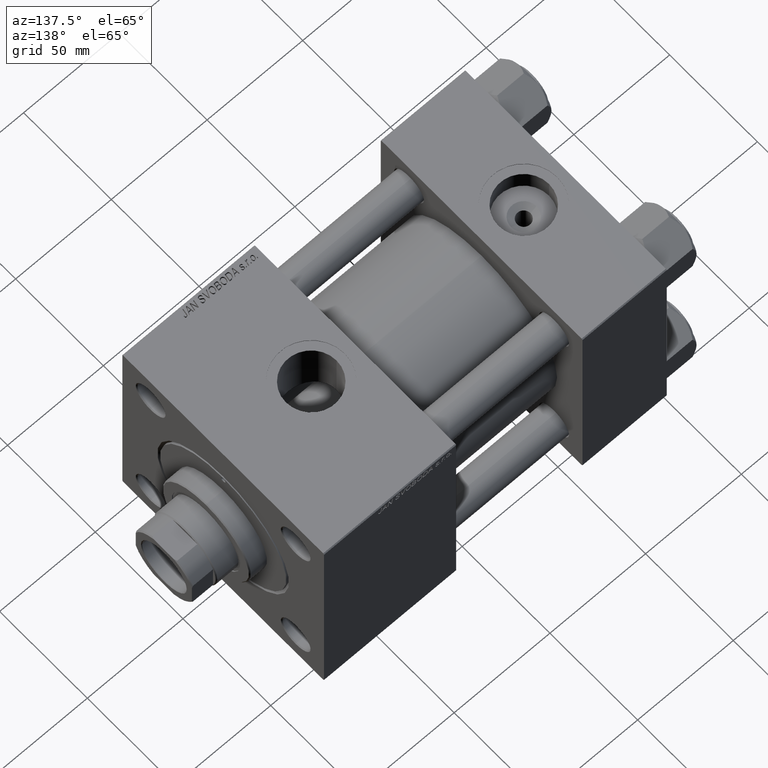
[diagram: clean part render]
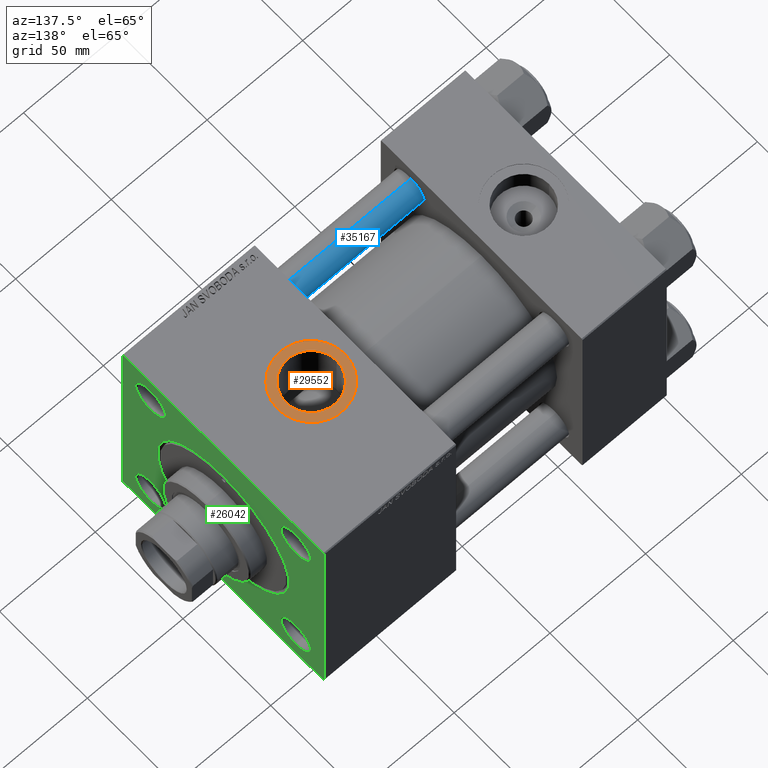
[diagram: same view with three faces highlighted in distinct colors, each labeled with its STEP entity id]
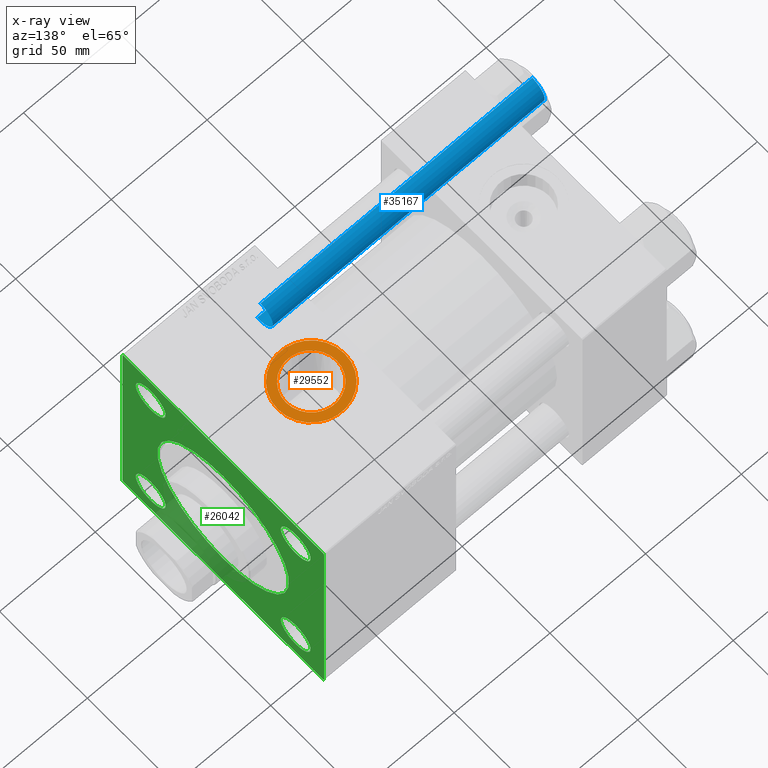
[diagram: x-ray of the same camera — body ghosted, the three highlighted faces saturated]
A machine part, auxiliary view with three faces highlighted in distinct colors.
The next image is the same camera in x-ray (body ghosted, the three faces saturated) — at least one of them is partly hidden behind the body in this view.
Their STEP definitions:

[orange] entity #29552 — the highlighted planar face has unit normal (0, 0, 1).
#899 = CARTESIAN_POINT ( 'NONE',  ( 115.4999999999999858, -4.795762005399357763E-15, 57.30000000000000426 ) ) ;
#1336 = EDGE_LOOP ( 'NONE', ( #49552, #43679 ) ) ;
#2444 = CIRCLE ( 'NONE', #14855, 13.22000000000000952 ) ;
#2804 = CARTESIAN_POINT ( 'NONE',  ( 119.7800000000000011, -6.938893903907229955E-15, 57.30000000000000426 ) ) ;
#3019 = DIRECTION ( 'NONE',  ( 0.000000000000000000, 0.000000000000000000, 1.000000000000000000 ) ) ;
#3415 = PLANE ( 'NONE',  #5396 ) ;
#4392 = EDGE_CURVE ( 'NONE', #24232, #10200, #36572, .T. ) ;
#5396 = AXIS2_PLACEMENT_3D ( 'NONE', #30386, #38119, #10623 ) ;
#7269 = FACE_BOUND ( 'NONE', #17967, .T. ) ;
#10200 = VERTEX_POINT ( 'NONE', #2804 ) ;
#10391 = DIRECTION ( 'NONE',  ( -0.000000000000000000, -0.000000000000000000, -1.000000000000000000 ) ) ;
#10623 = DIRECTION ( 'NONE',  ( 1.000000000000000000, 0.000000000000000000, -0.000000000000000000 ) ) ;
#12533 = CIRCLE ( 'NONE', #31395, 17.50000000000001421 ) ;
#13864 = DIRECTION ( 'NONE',  ( 0.000000000000000000, 0.000000000000000000, 1.000000000000000000 ) ) ;
#14855 = AXIS2_PLACEMENT_3D ( 'NONE', #37891, #50703, #30407 ) ;
#16553 = CIRCLE ( 'NONE', #37892, 17.50000000000001421 ) ;
#17967 = EDGE_LOOP ( 'NONE', ( #19486, #24415 ) ) ;
#18699 = DIRECTION ( 'NONE',  ( 1.000000000000000000, 0.000000000000000000, 0.000000000000000000 ) ) ;
#19486 = ORIENTED_EDGE ( 'NONE', *, *, #45983, .T. ) ;
#20109 = CARTESIAN_POINT ( 'NONE',  ( 146.2200000000000273, -5.319910835434427226E-15, 57.30000000000000426 ) ) ;
#21808 = DIRECTION ( 'NONE',  ( 1.000000000000000000, 0.000000000000000000, 0.000000000000000000 ) ) ;
#22519 = EDGE_CURVE ( 'NONE', #36223, #32382, #12533, .T. ) ;
#23374 = CARTESIAN_POINT ( 'NONE',  ( 150.5000000000000284, -6.938893903907229955E-15, 57.30000000000000426 ) ) ;
#24232 = VERTEX_POINT ( 'NONE', #20109 ) ;
#24415 = ORIENTED_EDGE ( 'NONE', *, *, #4392, .T. ) ;
#27294 = FACE_OUTER_BOUND ( 'NONE', #1336, .T. ) ;
#29552 = ADVANCED_FACE ( 'NONE', ( #7269, #27294 ), #3415, .T. ) ;
#30386 = CARTESIAN_POINT ( 'NONE',  ( 133.0000000000000000, -6.938893903907229955E-15, 57.30000000000000426 ) ) ;
#30407 = DIRECTION ( 'NONE',  ( 1.000000000000000000, 0.000000000000000000, 0.000000000000000000 ) ) ;
#31395 = AXIS2_PLACEMENT_3D ( 'NONE', #49050, #13864, #21808 ) ;
#32382 = VERTEX_POINT ( 'NONE', #899 ) ;
#33014 = CARTESIAN_POINT ( 'NONE',  ( 133.0000000000000000, -6.938893903907229955E-15, 57.30000000000000426 ) ) ;
#35766 = AXIS2_PLACEMENT_3D ( 'NONE', #33014, #10391, #49437 ) ;
#36223 = VERTEX_POINT ( 'NONE', #23374 ) ;
#36572 = CIRCLE ( 'NONE', #35766, 13.22000000000000952 ) ;
#37891 = CARTESIAN_POINT ( 'NONE',  ( 133.0000000000000000, -6.938893903907229955E-15, 57.30000000000000426 ) ) ;
#37892 = AXIS2_PLACEMENT_3D ( 'NONE', #38235, #3019, #18699 ) ;
#38119 = DIRECTION ( 'NONE',  ( 0.000000000000000000, 0.000000000000000000, 1.000000000000000000 ) ) ;
#38235 = CARTESIAN_POINT ( 'NONE',  ( 133.0000000000000000, -6.938893903907229955E-15, 57.30000000000000426 ) ) ;
#43679 = ORIENTED_EDGE ( 'NONE', *, *, #50285, .T. ) ;
#45983 = EDGE_CURVE ( 'NONE', #10200, #24232, #2444, .T. ) ;
#49050 = CARTESIAN_POINT ( 'NONE',  ( 133.0000000000000000, -6.938893903907229955E-15, 57.30000000000000426 ) ) ;
#49437 = DIRECTION ( 'NONE',  ( 1.000000000000000000, 0.000000000000000000, 0.000000000000000000 ) ) ;
#49552 = ORIENTED_EDGE ( 'NONE', *, *, #22519, .T. ) ;
#50285 = EDGE_CURVE ( 'NONE', #32382, #36223, #16553, .T. ) ;
#50703 = DIRECTION ( 'NONE',  ( -0.000000000000000000, -0.000000000000000000, -1.000000000000000000 ) ) ;

[blue] entity #35167 — the highlighted cylindrical surface (edge-blend (fillet) strip) has radius 8 mm, axis along (1, 0, -0).
#1071 = FACE_OUTER_BOUND ( 'NONE', #18925, .T. ) ;
#1137 = LINE ( 'NONE', #44563, #49214 ) ;
#1935 = ORIENTED_EDGE ( 'NONE', *, *, #14462, .T. ) ;
#2198 = AXIS2_PLACEMENT_3D ( 'NONE', #16756, #13586, #13841 ) ;
#11372 = DIRECTION ( 'NONE',  ( -0.000000000000000000, -0.000000000000000000, 1.000000000000000000 ) ) ;
#13586 = DIRECTION ( 'NONE',  ( -0.000000000000000000, -0.000000000000000000, -1.000000000000000000 ) ) ;
#13841 = DIRECTION ( 'NONE',  ( -1.000000000000000000, 0.000000000000000000, 0.000000000000000000 ) ) ;
#14462 = EDGE_CURVE ( 'NONE', #43393, #36994, #26290, .T. ) ;
#15328 = EDGE_CURVE ( 'NONE', #29436, #36994, #41071, .T. ) ;
#16397 = DIRECTION ( 'NONE',  ( 1.000000000000000000, 0.000000000000000000, 0.000000000000000000 ) ) ;
#16756 = CARTESIAN_POINT ( 'NONE',  ( 0.000000000000000000, 0.000000000000000000, 143.0000000000000000 ) ) ;
#16903 = CARTESIAN_POINT ( 'NONE',  ( 0.000000000000000000, 0.000000000000000000, 142.4999999999999716 ) ) ;
#16922 = CIRCLE ( 'NONE', #39080, 8.000000000000000000 ) ;
#18925 = EDGE_LOOP ( 'NONE', ( #43512, #31674, #27037, #1935 ) ) ;
#20413 = DIRECTION ( 'NONE',  ( -0.000000000000000000, -0.000000000000000000, -1.000000000000000000 ) ) ;
#23425 = DIRECTION ( 'NONE',  ( 1.000000000000000000, 0.000000000000000000, 0.000000000000000000 ) ) ;
#23684 = CARTESIAN_POINT ( 'NONE',  ( 0.000000000000000000, 0.000000000000000000, 0.4999999999999726885 ) ) ;
#26173 = CARTESIAN_POINT ( 'NONE',  ( 8.000000000000000000, 9.797174393178825657E-16, 0.4999999999999726885 ) ) ;
#26290 = CIRCLE ( 'NONE', #38606, 8.000000000000000000 ) ;
#27037 = ORIENTED_EDGE ( 'NONE', *, *, #42945, .T. ) ;
#27135 = VECTOR ( 'NONE', #33100, 1000.000000000000000 ) ;
#27867 = CARTESIAN_POINT ( 'NONE',  ( 8.000000000000000000, 9.797174393178825657E-16, 142.4999999999999716 ) ) ;
#29436 = VERTEX_POINT ( 'NONE', #27867 ) ;
#31674 = ORIENTED_EDGE ( 'NONE', *, *, #33399, .T. ) ;
#33100 = DIRECTION ( 'NONE',  ( -0.000000000000000000, -0.000000000000000000, -1.000000000000000000 ) ) ;
#33361 = CYLINDRICAL_SURFACE ( 'NONE', #2198, 8.000000000000000000 ) ;
#33399 = EDGE_CURVE ( 'NONE', #29436, #41085, #16922, .T. ) ;
#35167 = ADVANCED_FACE ( 'NONE', ( #1071 ), #33361, .T. ) ;
#35409 = DIRECTION ( 'NONE',  ( 0.000000000000000000, 0.000000000000000000, -1.000000000000000000 ) ) ;
#36713 = CARTESIAN_POINT ( 'NONE',  ( 8.000000000000000000, 9.797174393178825657E-16, 143.0000000000000000 ) ) ;
#36994 = VERTEX_POINT ( 'NONE', #26173 ) ;
#38606 = AXIS2_PLACEMENT_3D ( 'NONE', #23684, #11372, #23425 ) ;
#39080 = AXIS2_PLACEMENT_3D ( 'NONE', #16903, #35409, #16397 ) ;
#41071 = LINE ( 'NONE', #36713, #27135 ) ;
#41085 = VERTEX_POINT ( 'NONE', #48155 ) ;
#42945 = EDGE_CURVE ( 'NONE', #41085, #43393, #1137, .T. ) ;
#43393 = VERTEX_POINT ( 'NONE', #45484 ) ;
#43512 = ORIENTED_EDGE ( 'NONE', *, *, #15328, .F. ) ;
#44563 = CARTESIAN_POINT ( 'NONE',  ( -8.000000000000000000, 0.000000000000000000, 143.0000000000000000 ) ) ;
#45484 = CARTESIAN_POINT ( 'NONE',  ( -8.000000000000000000, 0.000000000000000000, 0.4999999999999726885 ) ) ;
#48155 = CARTESIAN_POINT ( 'NONE',  ( -8.000000000000000000, 0.000000000000000000, 142.4999999999999716 ) ) ;
#49214 = VECTOR ( 'NONE', #20413, 1000.000000000000000 ) ;

[green] entity #26042 — the highlighted planar face has unit normal (-1, 0, 0).
#213 = DIRECTION ( 'NONE',  ( -1.000000000000000000, 0.000000000000000000, -0.000000000000000000 ) ) ;
#1044 = EDGE_CURVE ( 'NONE', #27245, #3831, #22498, .T. ) ;
#1331 = EDGE_CURVE ( 'NONE', #1526, #26158, #33271, .T. ) ;
#1509 = DIRECTION ( 'NONE',  ( -1.000000000000000000, 0.000000000000000000, -0.000000000000000000 ) ) ;
#1526 = VERTEX_POINT ( 'NONE', #24498 ) ;
#1584 = CARTESIAN_POINT ( 'NONE',  ( 179.0000000000000000, 41.34999999999999432, 49.85000000000006537 ) ) ;
#1870 = CARTESIAN_POINT ( 'NONE',  ( 179.0000000000000000, -41.34999999999999432, -32.84999999999994458 ) ) ;
#2100 = CARTESIAN_POINT ( 'NONE',  ( 179.0000000000000000, -57.49999999999999289, 57.49999999999999289 ) ) ;
#2151 = ORIENTED_EDGE ( 'NONE', *, *, #19274, .T. ) ;
#2224 = VERTEX_POINT ( 'NONE', #4789 ) ;
#2353 = DIRECTION ( 'NONE',  ( 0.000000000000000000, 0.000000000000000000, 1.000000000000000000 ) ) ;
#2827 = EDGE_CURVE ( 'NONE', #7281, #45941, #33261, .T. ) ;
#3262 = DIRECTION ( 'NONE',  ( -1.000000000000000000, 0.000000000000000000, -0.000000000000000000 ) ) ;
#3313 = ORIENTED_EDGE ( 'NONE', *, *, #49356, .T. ) ;
#3489 = DIRECTION ( 'NONE',  ( 0.000000000000000000, 0.7071067811865721087, -0.7071067811865230368 ) ) ;
#3616 = EDGE_CURVE ( 'NONE', #13912, #33077, #22613, .T. ) ;
#3702 = AXIS2_PLACEMENT_3D ( 'NONE', #8783, #27514, #15731 ) ;
#3831 = VERTEX_POINT ( 'NONE', #47260 ) ;
#4187 = AXIS2_PLACEMENT_3D ( 'NONE', #7024, #38390, #38896 ) ;
#4710 = AXIS2_PLACEMENT_3D ( 'NONE', #37368, #30140, #17836 ) ;
#4789 = CARTESIAN_POINT ( 'NONE',  ( 179.0000000000000000, -56.99999999999998579, 57.49999999999999289 ) ) ;
#4989 = VERTEX_POINT ( 'NONE', #22832 ) ;
#5984 = ORIENTED_EDGE ( 'NONE', *, *, #34194, .T. ) ;
#6034 = CARTESIAN_POINT ( 'NONE',  ( 179.0000000000000000, 56.99999999999997158, 57.50000000000000711 ) ) ;
#6340 = EDGE_LOOP ( 'NONE', ( #24869, #6719 ) ) ;
#6719 = ORIENTED_EDGE ( 'NONE', *, *, #30381, .T. ) ;
#6721 = VERTEX_POINT ( 'NONE', #10209 ) ;
#7024 = CARTESIAN_POINT ( 'NONE',  ( 179.0000000000000000, 0.000000000000000000, 0.000000000000000000 ) ) ;
#7163 = FACE_BOUND ( 'NONE', #9271, .T. ) ;
#7281 = VERTEX_POINT ( 'NONE', #1870 ) ;
#7726 = VERTEX_POINT ( 'NONE', #38981 ) ;
#7925 = PLANE ( 'NONE',  #17678 ) ;
#8313 = ORIENTED_EDGE ( 'NONE', *, *, #45298, .T. ) ;
#8754 = ORIENTED_EDGE ( 'NONE', *, *, #10050, .F. ) ;
#8783 = CARTESIAN_POINT ( 'NONE',  ( 179.0000000000000000, -41.34999999999999432, -41.35000000000000142 ) ) ;
#9271 = EDGE_LOOP ( 'NONE', ( #8313, #33177 ) ) ;
#9376 = DIRECTION ( 'NONE',  ( -1.000000000000000000, 0.000000000000000000, -0.000000000000000000 ) ) ;
#10050 = EDGE_CURVE ( 'NONE', #1526, #20120, #16227, .T. ) ;
#10064 = AXIS2_PLACEMENT_3D ( 'NONE', #28706, #41290, #25345 ) ;
#10094 = CIRCLE ( 'NONE', #20117, 8.500000000000063949 ) ;
#10209 = CARTESIAN_POINT ( 'NONE',  ( 179.0000000000000000, 41.34999999999999432, -49.85000000000006537 ) ) ;
#10668 = VECTOR ( 'NONE', #29588, 1000.000000000000000 ) ;
#11056 = DIRECTION ( 'NONE',  ( 0.000000000000000000, 0.000000000000000000, 1.000000000000000000 ) ) ;
#13031 = ORIENTED_EDGE ( 'NONE', *, *, #36448, .T. ) ;
#13216 = AXIS2_PLACEMENT_3D ( 'NONE', #19704, #3262, #35376 ) ;
#13249 = CARTESIAN_POINT ( 'NONE',  ( 179.0000000000000000, -41.34999999999999432, -49.85000000000006537 ) ) ;
#13370 = ORIENTED_EDGE ( 'NONE', *, *, #32713, .F. ) ;
#13379 = DIRECTION ( 'NONE',  ( 0.000000000000000000, 0.000000000000000000, -1.000000000000000000 ) ) ;
#13912 = VERTEX_POINT ( 'NONE', #31771 ) ;
#15129 = FACE_BOUND ( 'NONE', #47298, .T. ) ;
#15260 = VECTOR ( 'NONE', #21109, 1000.000000000000000 ) ;
#15310 = EDGE_LOOP ( 'NONE', ( #13031, #27240 ) ) ;
#15731 = DIRECTION ( 'NONE',  ( 0.000000000000000000, 0.000000000000000000, 1.000000000000000000 ) ) ;
#16160 = CIRCLE ( 'NONE', #22574, 8.500000000000063949 ) ;
#16227 = LINE ( 'NONE', #16981, #47514 ) ;
#16709 = CARTESIAN_POINT ( 'NONE',  ( 179.0000000000000000, 0.000000000000000000, -37.50000000000000711 ) ) ;
#16981 = CARTESIAN_POINT ( 'NONE',  ( 179.0000000000000000, 57.50000000000000000, 57.50000000000000711 ) ) ;
#17289 = LINE ( 'NONE', #20885, #10668 ) ;
#17460 = VECTOR ( 'NONE', #24979, 1000.000000000000000 ) ;
#17678 = AXIS2_PLACEMENT_3D ( 'NONE', #31041, #213, #19233 ) ;
#17836 = DIRECTION ( 'NONE',  ( 0.000000000000000000, 0.000000000000000000, 1.000000000000000000 ) ) ;
#19088 = DIRECTION ( 'NONE',  ( -1.000000000000000000, 0.000000000000000000, -0.000000000000000000 ) ) ;
#19233 = DIRECTION ( 'NONE',  ( -0.000000000000000000, 0.000000000000000000, 1.000000000000000000 ) ) ;
#19274 = EDGE_CURVE ( 'NONE', #6721, #7726, #33056, .T. ) ;
#19444 = CIRCLE ( 'NONE', #4710, 8.500000000000063949 ) ;
#19704 = CARTESIAN_POINT ( 'NONE',  ( 179.0000000000000000, 41.34999999999999432, -41.35000000000000142 ) ) ;
#19727 = EDGE_CURVE ( 'NONE', #25917, #27245, #28336, .T. ) ;
#19746 = FACE_BOUND ( 'NONE', #6340, .T. ) ;
#20117 = AXIS2_PLACEMENT_3D ( 'NONE', #37578, #37320, #2353 ) ;
#20120 = VERTEX_POINT ( 'NONE', #39971 ) ;
#20356 = CARTESIAN_POINT ( 'NONE',  ( 179.0000000000000000, 57.50000000000000000, 57.50000000000000711 ) ) ;
#20426 = EDGE_LOOP ( 'NONE', ( #2151, #3313 ) ) ;
#20885 = CARTESIAN_POINT ( 'NONE',  ( 179.0000000000000000, 57.50000000000000000, -56.99999999999994316 ) ) ;
#21109 = DIRECTION ( 'NONE',  ( 0.000000000000000000, -1.000000000000000000, -1.206764157201257291E-16 ) ) ;
#21442 = VERTEX_POINT ( 'NONE', #1584 ) ;
#22498 = LINE ( 'NONE', #46646, #24972 ) ;
#22574 = AXIS2_PLACEMENT_3D ( 'NONE', #46065, #19088, #34751 ) ;
#22613 = CIRCLE ( 'NONE', #42318, 37.50000000000000711 ) ;
#22828 = FACE_BOUND ( 'NONE', #20426, .T. ) ;
#22832 = CARTESIAN_POINT ( 'NONE',  ( 179.0000000000000000, -41.34999999999999432, 32.84999999999994458 ) ) ;
#23059 = CIRCLE ( 'NONE', #13216, 8.500000000000063949 ) ;
#24225 = ORIENTED_EDGE ( 'NONE', *, *, #43639, .T. ) ;
#24498 = CARTESIAN_POINT ( 'NONE',  ( 179.0000000000000000, 57.50000000000000000, 57.00000000000000711 ) ) ;
#24869 = ORIENTED_EDGE ( 'NONE', *, *, #31546, .T. ) ;
#24972 = VECTOR ( 'NONE', #3489, 1000.000000000000000 ) ;
#24979 = DIRECTION ( 'NONE',  ( 0.000000000000000000, 0.000000000000000000, -1.000000000000000000 ) ) ;
#24983 = ORIENTED_EDGE ( 'NONE', *, *, #26869, .T. ) ;
#25345 = DIRECTION ( 'NONE',  ( 0.000000000000000000, 0.000000000000000000, 1.000000000000000000 ) ) ;
#25361 = VERTEX_POINT ( 'NONE', #45258 ) ;
#25430 = AXIS2_PLACEMENT_3D ( 'NONE', #36721, #1509, #36219 ) ;
#25917 = VERTEX_POINT ( 'NONE', #42941 ) ;
#25995 = ORIENTED_EDGE ( 'NONE', *, *, #19727, .T. ) ;
#26042 = ADVANCED_FACE ( 'NONE', ( #15129, #19746, #39025, #22828, #7163, #42113 ), #7925, .F. ) ;
#26158 = VERTEX_POINT ( 'NONE', #43899 ) ;
#26312 = CIRCLE ( 'NONE', #4187, 37.50000000000000711 ) ;
#26808 = ORIENTED_EDGE ( 'NONE', *, *, #31553, .T. ) ;
#26869 = EDGE_CURVE ( 'NONE', #46716, #21442, #10094, .T. ) ;
#27240 = ORIENTED_EDGE ( 'NONE', *, *, #2827, .T. ) ;
#27245 = VERTEX_POINT ( 'NONE', #35872 ) ;
#27514 = DIRECTION ( 'NONE',  ( -1.000000000000000000, 0.000000000000000000, -0.000000000000000000 ) ) ;
#27975 = CARTESIAN_POINT ( 'NONE',  ( 179.0000000000000000, -57.49999999999999289, 56.99999999999996447 ) ) ;
#28336 = LINE ( 'NONE', #2100, #17460 ) ;
#28490 = LINE ( 'NONE', #27975, #42364 ) ;
#28706 = CARTESIAN_POINT ( 'NONE',  ( 179.0000000000000000, 41.34999999999999432, -41.35000000000000142 ) ) ;
#28908 = DIRECTION ( 'NONE',  ( 0.000000000000000000, -0.7071067811865672237, 0.7071067811865279218 ) ) ;
#29588 = DIRECTION ( 'NONE',  ( -0.000000000000000000, 0.7071067811865279218, 0.7071067811865672237 ) ) ;
#30140 = DIRECTION ( 'NONE',  ( -1.000000000000000000, 0.000000000000000000, -0.000000000000000000 ) ) ;
#30381 = EDGE_CURVE ( 'NONE', #49048, #4989, #37464, .T. ) ;
#31041 = CARTESIAN_POINT ( 'NONE',  ( 179.0000000000000000, 0.000000000000000000, 0.000000000000000000 ) ) ;
#31546 = EDGE_CURVE ( 'NONE', #4989, #49048, #16160, .T. ) ;
#31553 = EDGE_CURVE ( 'NONE', #26158, #2224, #39906, .T. ) ;
#31771 = CARTESIAN_POINT ( 'NONE',  ( 179.0000000000000000, 4.592425496802575156E-15, 37.50000000000000711 ) ) ;
#32469 = ORIENTED_EDGE ( 'NONE', *, *, #46871, .T. ) ;
#32713 = EDGE_CURVE ( 'NONE', #25361, #3831, #47604, .T. ) ;
#33056 = CIRCLE ( 'NONE', #10064, 8.500000000000063949 ) ;
#33077 = VERTEX_POINT ( 'NONE', #16709 ) ;
#33177 = ORIENTED_EDGE ( 'NONE', *, *, #3616, .T. ) ;
#33261 = CIRCLE ( 'NONE', #3702, 8.500000000000063949 ) ;
#33271 = LINE ( 'NONE', #6034, #35687 ) ;
#34194 = EDGE_CURVE ( 'NONE', #2224, #25917, #28490, .T. ) ;
#34751 = DIRECTION ( 'NONE',  ( 0.000000000000000000, 0.000000000000000000, 1.000000000000000000 ) ) ;
#35376 = DIRECTION ( 'NONE',  ( 0.000000000000000000, 0.000000000000000000, 1.000000000000000000 ) ) ;
#35687 = VECTOR ( 'NONE', #28908, 1000.000000000000000 ) ;
#35872 = CARTESIAN_POINT ( 'NONE',  ( 179.0000000000000000, -57.49999999999999289, -56.99999999999997868 ) ) ;
#36219 = DIRECTION ( 'NONE',  ( 0.000000000000000000, 0.000000000000000000, 1.000000000000000000 ) ) ;
#36287 = DIRECTION ( 'NONE',  ( 0.000000000000000000, -1.000000000000000000, -1.206764157201257291E-16 ) ) ;
#36448 = EDGE_CURVE ( 'NONE', #45941, #7281, #19444, .T. ) ;
#36721 = CARTESIAN_POINT ( 'NONE',  ( 179.0000000000000000, 41.34999999999999432, 41.35000000000000142 ) ) ;
#37320 = DIRECTION ( 'NONE',  ( -1.000000000000000000, 0.000000000000000000, -0.000000000000000000 ) ) ;
#37368 = CARTESIAN_POINT ( 'NONE',  ( 179.0000000000000000, -41.34999999999999432, -41.35000000000000142 ) ) ;
#37376 = EDGE_LOOP ( 'NONE', ( #25995, #49809, #13370, #32469, #8754, #48796, #26808, #5984 ) ) ;
#37464 = CIRCLE ( 'NONE', #42368, 8.500000000000063949 ) ;
#37578 = CARTESIAN_POINT ( 'NONE',  ( 179.0000000000000000, 41.34999999999999432, 41.35000000000000142 ) ) ;
#38390 = DIRECTION ( 'NONE',  ( -1.000000000000000000, 0.000000000000000000, -0.000000000000000000 ) ) ;
#38807 = CARTESIAN_POINT ( 'NONE',  ( 179.0000000000000000, 0.000000000000000000, 0.000000000000000000 ) ) ;
#38896 = DIRECTION ( 'NONE',  ( 0.000000000000000000, 0.000000000000000000, 1.000000000000000000 ) ) ;
#38981 = CARTESIAN_POINT ( 'NONE',  ( 179.0000000000000000, 41.34999999999999432, -32.84999999999994458 ) ) ;
#39025 = FACE_BOUND ( 'NONE', #15310, .T. ) ;
#39906 = LINE ( 'NONE', #20356, #44874 ) ;
#39971 = CARTESIAN_POINT ( 'NONE',  ( 179.0000000000000000, 57.50000000000000000, -56.99999999999994316 ) ) ;
#40720 = DIRECTION ( 'NONE',  ( 0.000000000000000000, 0.000000000000000000, 1.000000000000000000 ) ) ;
#41290 = DIRECTION ( 'NONE',  ( -1.000000000000000000, 0.000000000000000000, -0.000000000000000000 ) ) ;
#42113 = FACE_OUTER_BOUND ( 'NONE', #37376, .T. ) ;
#42318 = AXIS2_PLACEMENT_3D ( 'NONE', #38807, #50349, #11056 ) ;
#42364 = VECTOR ( 'NONE', #43676, 1000.000000000000000 ) ;
#42368 = AXIS2_PLACEMENT_3D ( 'NONE', #43577, #9376, #40720 ) ;
#42941 = CARTESIAN_POINT ( 'NONE',  ( 179.0000000000000000, -57.49999999999999289, 56.99999999999996447 ) ) ;
#43409 = CARTESIAN_POINT ( 'NONE',  ( 179.0000000000000000, -41.34999999999999432, 49.85000000000006537 ) ) ;
#43577 = CARTESIAN_POINT ( 'NONE',  ( 179.0000000000000000, -41.34999999999999432, 41.35000000000000142 ) ) ;
#43639 = EDGE_CURVE ( 'NONE', #21442, #46716, #49249, .T. ) ;
#43676 = DIRECTION ( 'NONE',  ( -0.000000000000000000, -0.7071067811865328068, -0.7071067811865622277 ) ) ;
#43899 = CARTESIAN_POINT ( 'NONE',  ( 179.0000000000000000, 56.99999999999997158, 57.50000000000000711 ) ) ;
#44874 = VECTOR ( 'NONE', #36287, 1000.000000000000000 ) ;
#45258 = CARTESIAN_POINT ( 'NONE',  ( 179.0000000000000000, 57.00000000000000000, -57.49999999999996447 ) ) ;
#45298 = EDGE_CURVE ( 'NONE', #33077, #13912, #26312, .T. ) ;
#45941 = VERTEX_POINT ( 'NONE', #13249 ) ;
#46065 = CARTESIAN_POINT ( 'NONE',  ( 179.0000000000000000, -41.34999999999999432, 41.35000000000000142 ) ) ;
#46646 = CARTESIAN_POINT ( 'NONE',  ( 179.0000000000000000, -56.99999999999995737, -57.49999999999997868 ) ) ;
#46716 = VERTEX_POINT ( 'NONE', #47372 ) ;
#46871 = EDGE_CURVE ( 'NONE', #25361, #20120, #17289, .T. ) ;
#47260 = CARTESIAN_POINT ( 'NONE',  ( 179.0000000000000000, -56.99999999999995737, -57.49999999999997868 ) ) ;
#47298 = EDGE_LOOP ( 'NONE', ( #24983, #24225 ) ) ;
#47372 = CARTESIAN_POINT ( 'NONE',  ( 179.0000000000000000, 41.34999999999999432, 32.84999999999994458 ) ) ;
#47514 = VECTOR ( 'NONE', #13379, 1000.000000000000000 ) ;
#47604 = LINE ( 'NONE', #48356, #15260 ) ;
#48356 = CARTESIAN_POINT ( 'NONE',  ( 179.0000000000000000, 57.50000000000000000, -57.49999999999996447 ) ) ;
#48796 = ORIENTED_EDGE ( 'NONE', *, *, #1331, .T. ) ;
#49048 = VERTEX_POINT ( 'NONE', #43409 ) ;
#49249 = CIRCLE ( 'NONE', #25430, 8.500000000000063949 ) ;
#49356 = EDGE_CURVE ( 'NONE', #7726, #6721, #23059, .T. ) ;
#49809 = ORIENTED_EDGE ( 'NONE', *, *, #1044, .T. ) ;
#50349 = DIRECTION ( 'NONE',  ( -1.000000000000000000, 0.000000000000000000, -0.000000000000000000 ) ) ;